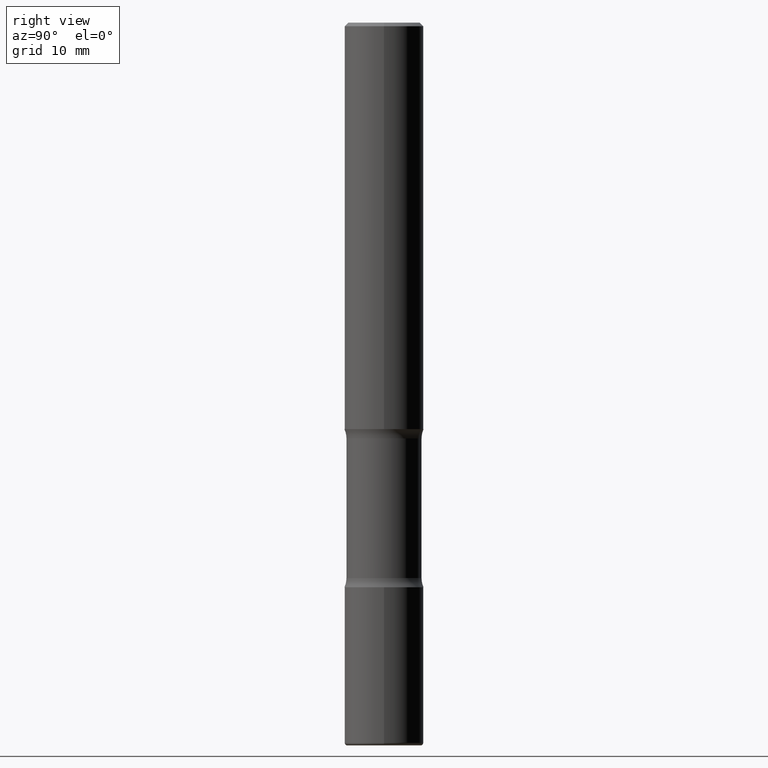
[diagram: clean part render]
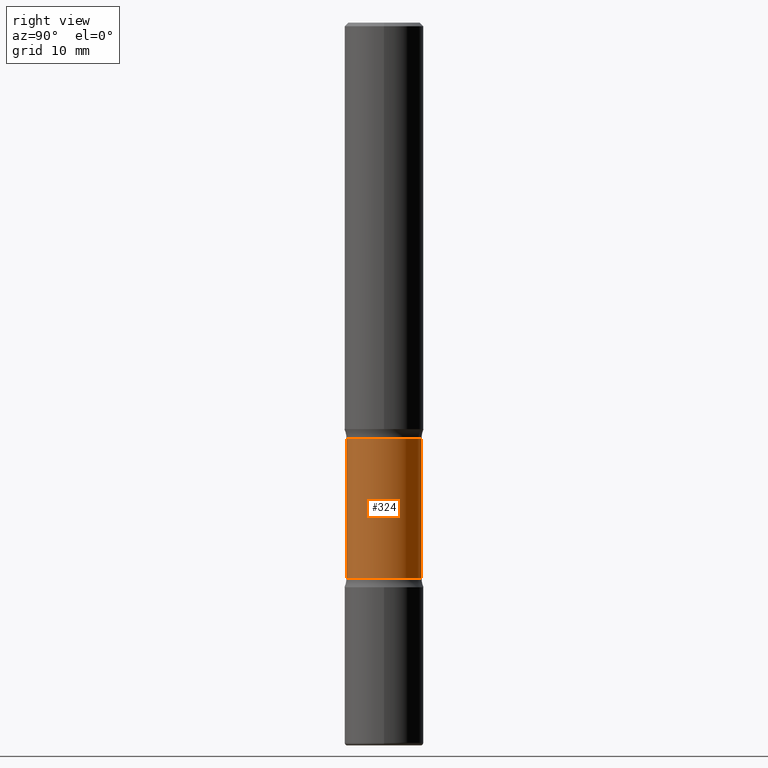
[diagram: same view with one face highlighted and labeled with its STEP entity id]
A machine part, right view. The second image highlights one B-rep face of the part: STEP entity #324.
In plain terms, the highlighted cylindrical surface (partial cylindrical patch) has radius 5.2784 mm, axis along (0, -0, -1).
Its self-contained STEP definition (entity closure, byte-faithful):
#7 = CARTESIAN_POINT ( 'NONE',  ( -1.463215588587155192E-15, -0.2078125000000081712, -2.301134588037354156 ) ) ;
#41 = ORIENTED_EDGE ( 'NONE', *, *, #449, .F. ) ;
#50 = ORIENTED_EDGE ( 'NONE', *, *, #137, .T. ) ;
#74 = CARTESIAN_POINT ( 'NONE',  ( -1.463215588587134090E-15, -0.2078125000000107248, -3.073865411962643179 ) ) ;
#84 = VERTEX_POINT ( 'NONE', #507 ) ;
#90 = EDGE_CURVE ( 'NONE', #470, #266, #538, .T. ) ;
#91 = DIRECTION ( 'NONE',  ( 2.542508401758147997E-29, -3.352515114831814446E-15, -1.000000000000000000 ) ) ;
#106 = CYLINDRICAL_SURFACE ( 'NONE', #480, 0.2078125000000000111 ) ;
#110 = DIRECTION ( 'NONE',  ( 2.542508401758147997E-29, -3.352515114831814446E-15, -1.000000000000000000 ) ) ;
#113 = CIRCLE ( 'NONE', #114, 0.2078125000000000389 ) ;
#114 = AXIS2_PLACEMENT_3D ( 'NONE', #218, #91, #174 ) ;
#135 = ORIENTED_EDGE ( 'NONE', *, *, #280, .T. ) ;
#137 = EDGE_CURVE ( 'NONE', #84, #454, #113, .T. ) ;
#174 = DIRECTION ( 'NONE',  ( 6.982962677686265133E-15, 1.000000000000000000, -3.943720411906303717E-15 ) ) ;
#190 = DIRECTION ( 'NONE',  ( 2.542508401758147997E-29, -3.352515114831814446E-15, -1.000000000000000000 ) ) ;
#218 = CARTESIAN_POINT ( 'NONE',  ( 5.547405287495589114E-29, -8.148857937692923452E-15, -2.301134588037355044 ) ) ;
#266 = VERTEX_POINT ( 'NONE', #74 ) ;
#280 = EDGE_CURVE ( 'NONE', #454, #266, #332, .T. ) ;
#297 = DIRECTION ( 'NONE',  ( 2.542508401758147997E-29, -3.352515114831814446E-15, -1.000000000000000000 ) ) ;
#324 = ADVANCED_FACE ( 'NONE', ( #489 ), #106, .T. ) ;
#332 = LINE ( 'NONE', #363, #520 ) ;
#354 = CARTESIAN_POINT ( 'NONE',  ( 9.866784870866931853E-29, -1.384432990936266734E-14, -4.000000000000000000 ) ) ;
#363 = CARTESIAN_POINT ( 'NONE',  ( -1.425697240161797519E-15, -0.2078125000000138334, -3.999999999999999556 ) ) ;
#369 = LINE ( 'NONE', #559, #488 ) ;
#376 = CARTESIAN_POINT ( 'NONE',  ( 1.451146931456752440E-15, 0.2078124999999892975, -3.073865411962644068 ) ) ;
#410 = CARTESIAN_POINT ( 'NONE',  ( 7.512079899623131265E-29, -1.073944970459889485E-14, -3.073865411962643623 ) ) ;
#424 = ORIENTED_EDGE ( 'NONE', *, *, #90, .F. ) ;
#449 = EDGE_CURVE ( 'NONE', #84, #470, #369, .T. ) ;
#454 = VERTEX_POINT ( 'NONE', #7 ) ;
#455 = AXIS2_PLACEMENT_3D ( 'NONE', #410, #297, #457 ) ;
#457 = DIRECTION ( 'NONE',  ( 6.982962677686265133E-15, 1.000000000000000000, -2.629146941270869802E-15 ) ) ;
#470 = VERTEX_POINT ( 'NONE', #376 ) ;
#480 = AXIS2_PLACEMENT_3D ( 'NONE', #354, #110, #494 ) ;
#488 = VECTOR ( 'NONE', #549, 39.37007874015748143 ) ;
#489 = FACE_OUTER_BOUND ( 'NONE', #543, .T. ) ;
#494 = DIRECTION ( 'NONE',  ( 6.982962677686265133E-15, 1.000000000000000000, -2.629146941270869802E-15 ) ) ;
#507 = CARTESIAN_POINT ( 'NONE',  ( 1.451146931456732915E-15, 0.2078124999999918787, -2.301134588037355932 ) ) ;
#520 = VECTOR ( 'NONE', #190, 39.37007874015748143 ) ;
#538 = CIRCLE ( 'NONE', #455, 0.2078125000000000111 ) ;
#543 = EDGE_LOOP ( 'NONE', ( #50, #135, #424, #41 ) ) ;
#549 = DIRECTION ( 'NONE',  ( 2.542508401758147997E-29, -3.352515114831814446E-15, -1.000000000000000000 ) ) ;
#559 = CARTESIAN_POINT ( 'NONE',  ( 1.451146931456775908E-15, 0.2078124999999861888, -4.000000000000000888 ) ) ;